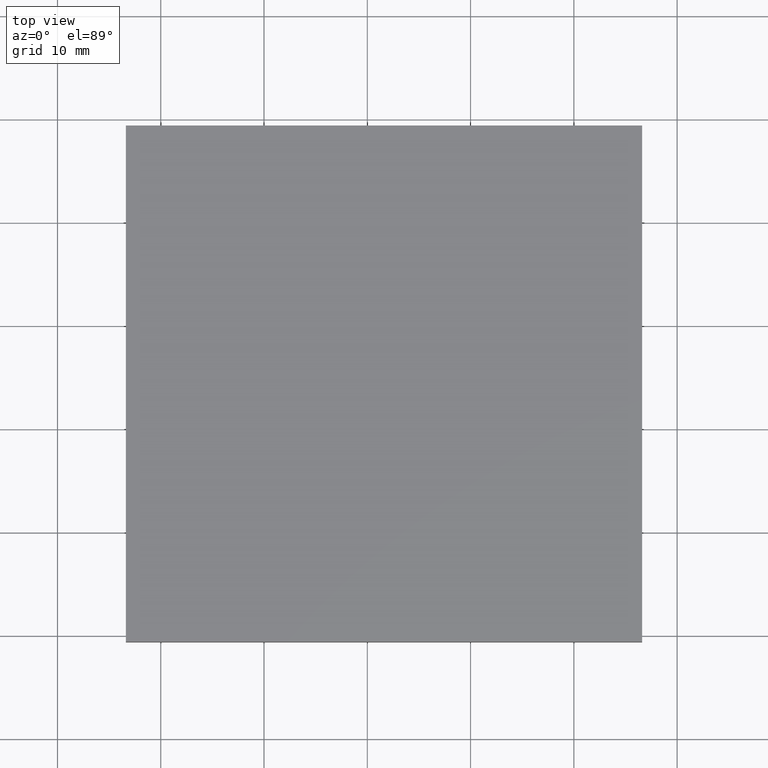
[diagram: clean part render]
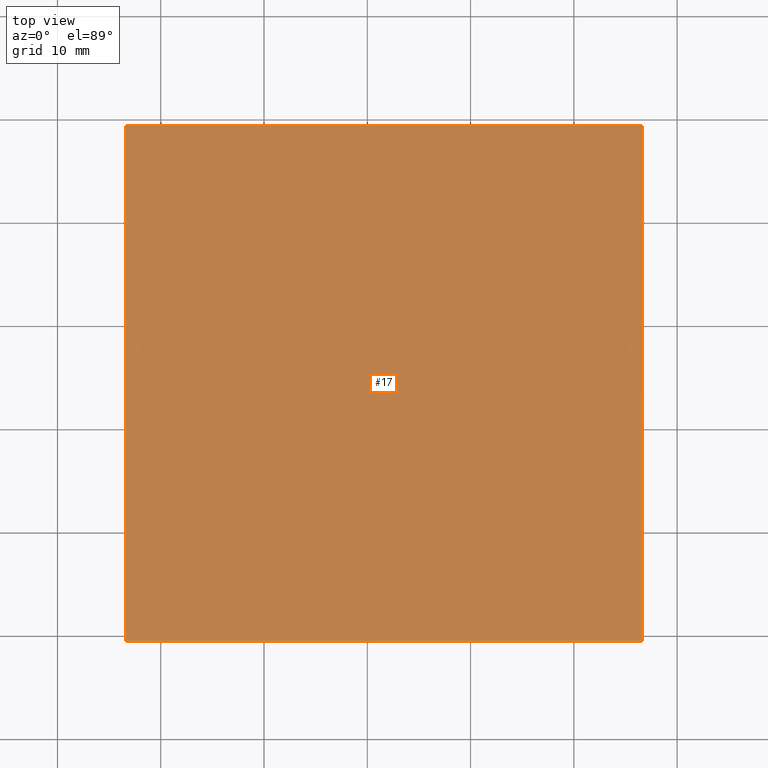
[diagram: same view with one face highlighted and labeled with its STEP entity id]
A machine part, top view. The second image highlights one B-rep face of the part: STEP entity #17.
In plain terms, the highlighted planar face has unit normal (0, 0, -1).
Its self-contained STEP definition (entity closure, byte-faithful):
#2 = EDGE_CURVE ( 'NONE', #37, #93, #5, .T. ) ;
#5 = LINE ( 'NONE', #7, #144 ) ;
#7 = CARTESIAN_POINT ( 'NONE',  ( 466.6175434576859400, 179.3843025342640100, 4.000000000000000000 ) ) ;
#8 = VECTOR ( 'NONE', #198, 1000.000000000000000 ) ;
#11 = DIRECTION ( 'NONE',  ( -0.0000000000000000000, 1.000000000000000000, -0.0000000000000000000 ) ) ;
#17 = ADVANCED_FACE ( 'NONE', ( #23 ), #161, .F. ) ;
#23 = FACE_OUTER_BOUND ( 'NONE', #86, .T. ) ;
#25 = ORIENTED_EDGE ( 'NONE', *, *, #2, .T. ) ;
#35 = ORIENTED_EDGE ( 'NONE', *, *, #120, .T. ) ;
#37 = VERTEX_POINT ( 'NONE', #177 ) ;
#40 = VERTEX_POINT ( 'NONE', #195 ) ;
#45 = CARTESIAN_POINT ( 'NONE',  ( 416.6175434576858800, 129.3843025342640100, 4.000000000000000000 ) ) ;
#57 = VECTOR ( 'NONE', #185, 1000.000000000000000 ) ;
#69 = LINE ( 'NONE', #113, #57 ) ;
#70 = LINE ( 'NONE', #45, #182 ) ;
#84 = EDGE_CURVE ( 'NONE', #130, #40, #70, .T. ) ;
#86 = EDGE_LOOP ( 'NONE', ( #127, #35, #25, #110 ) ) ;
#89 = CARTESIAN_POINT ( 'NONE',  ( 0.0000000000000000000, 0.0000000000000000000, 4.000000000000000000 ) ) ;
#93 = VERTEX_POINT ( 'NONE', #111 ) ;
#96 = DIRECTION ( 'NONE',  ( -1.000000000000000000, 0.0000000000000000000, -0.0000000000000000000 ) ) ;
#103 = LINE ( 'NONE', #143, #8 ) ;
#110 = ORIENTED_EDGE ( 'NONE', *, *, #175, .T. ) ;
#111 = CARTESIAN_POINT ( 'NONE',  ( 466.6175434576859400, 179.3843025342640100, 4.000000000000000000 ) ) ;
#113 = CARTESIAN_POINT ( 'NONE',  ( 466.6175434576859400, 129.3843025342640100, 4.000000000000000000 ) ) ;
#120 = EDGE_CURVE ( 'NONE', #40, #37, #69, .T. ) ;
#121 = AXIS2_PLACEMENT_3D ( 'NONE', #89, #122, #96 ) ;
#122 = DIRECTION ( 'NONE',  ( 0.0000000000000000000, 0.0000000000000000000, -1.000000000000000000 ) ) ;
#127 = ORIENTED_EDGE ( 'NONE', *, *, #84, .T. ) ;
#130 = VERTEX_POINT ( 'NONE', #141 ) ;
#141 = CARTESIAN_POINT ( 'NONE',  ( 416.6175434576858800, 179.3843025342640100, 4.000000000000000000 ) ) ;
#143 = CARTESIAN_POINT ( 'NONE',  ( 416.6175434576858800, 179.3843025342640100, 4.000000000000000000 ) ) ;
#144 = VECTOR ( 'NONE', #11, 1000.000000000000000 ) ;
#161 = PLANE ( 'NONE',  #121 ) ;
#174 = DIRECTION ( 'NONE',  ( -0.0000000000000000000, -1.000000000000000000, -0.0000000000000000000 ) ) ;
#175 = EDGE_CURVE ( 'NONE', #93, #130, #103, .T. ) ;
#177 = CARTESIAN_POINT ( 'NONE',  ( 466.6175434576859400, 129.3843025342640100, 4.000000000000000000 ) ) ;
#182 = VECTOR ( 'NONE', #174, 1000.000000000000000 ) ;
#185 = DIRECTION ( 'NONE',  ( 1.000000000000000000, -0.0000000000000000000, -0.0000000000000000000 ) ) ;
#195 = CARTESIAN_POINT ( 'NONE',  ( 416.6175434576858800, 129.3843025342640100, 4.000000000000000000 ) ) ;
#198 = DIRECTION ( 'NONE',  ( -1.000000000000000000, -0.0000000000000000000, -0.0000000000000000000 ) ) ;